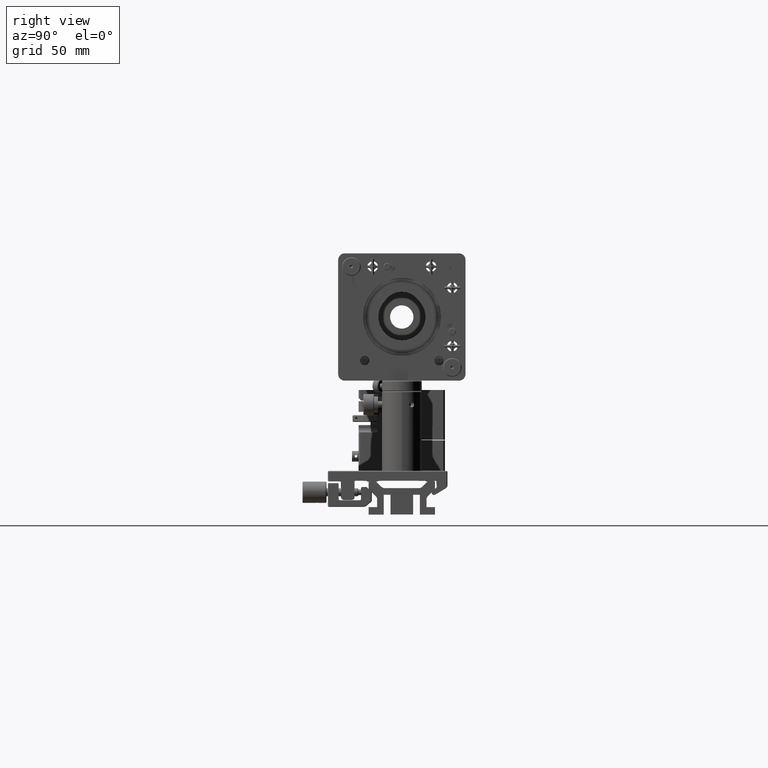
[diagram: clean part render]
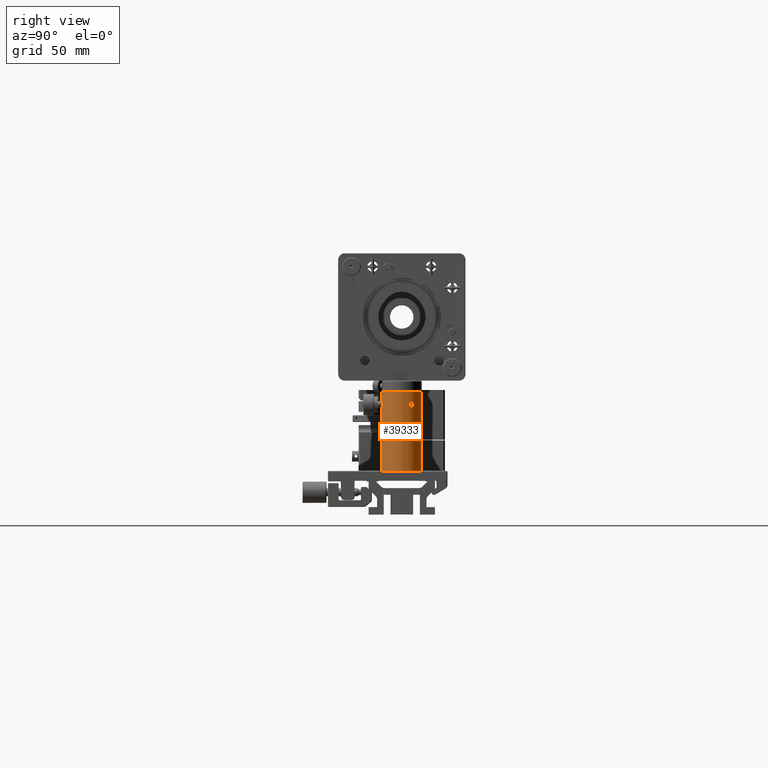
[diagram: same view with one face highlighted and labeled with its STEP entity id]
A machine part, right view. The second image highlights one B-rep face of the part: STEP entity #39333.
In plain terms, the highlighted cylindrical surface (bore or boss wall) has radius 15 mm, axis along (0, 0, 1).
Its self-contained STEP definition (entity closure, byte-faithful):
#714=B_SPLINE_CURVE_WITH_KNOTS('',3,(#88162,#88163,#88164,#88165,#88166,
#88167,#88168,#88169,#88170,#88171,#88172,#88173,#88174,#88175,#88176,#88177,
#88178,#88179,#88180,#88181,#88182,#88183,#88184,#88185,#88186,#88187,#88188,
#88189,#88190,#88191,#88192,#88193,#88194,#88195),.UNSPECIFIED.,.T.,.F.,
(4,2,2,2,2,2,2,2,2,2,2,2,2,2,2,2,4),(0.,0.0943624064863968,0.188724812972794,
0.283084699143846,0.377444585314898,0.47180447148595,0.566164357657002,
0.660526764143399,0.754889170629797,0.849251577116193,0.94361398360259,
1.03797386977364,1.13233375594469,1.22669364211575,1.3210535282868,1.4154159347732,
1.50977834125959),.UNSPECIFIED.);
#717=B_SPLINE_CURVE_WITH_KNOTS('',3,(#88280,#88281,#88282,#88283,#88284,
#88285,#88286,#88287,#88288,#88289),.UNSPECIFIED.,.F.,.F.,(4,2,2,2,4),(-0.45216790801132,
-0.414487261611798,-0.376806615212277,-0.339125943609912,-0.301445272007547),
 .UNSPECIFIED.);
#718=B_SPLINE_CURVE_WITH_KNOTS('',3,(#88290,#88291,#88292,#88293,#88294,
#88295,#88296,#88297,#88298,#88299,#88300,#88301,#88302,#88303,#88304,#88305,
#88306,#88307,#88308,#88309,#88310,#88311,#88312,#88313,#88314,#88315,#88316),
 .UNSPECIFIED.,.F.,.F.,(4,2,2,2,2,2,2,2,3,2,2,2,4),(-0.301445272007547,
-0.263764600405182,-0.226083928802817,-0.188403282403295,-0.150722636003773,
-0.113041989604252,-0.0753613432047298,-0.0376806716023649,0.,0.037680671602365,
0.07536134320473,0.113041989604252,0.150722636003774),.UNSPECIFIED.);
#719=B_SPLINE_CURVE_WITH_KNOTS('',3,(#88319,#88320,#88321,#88322,#88323,
#88324,#88325,#88326,#88327,#88328),.UNSPECIFIED.,.F.,.F.,(4,2,2,2,4),(-0.935613235848463,
-0.857645948723676,-0.77967866159889,-0.701710409415599,-0.623742157232308),
 .UNSPECIFIED.);
#720=B_SPLINE_CURVE_WITH_KNOTS('',3,(#88329,#88330,#88331,#88332,#88333,
#88334,#88335,#88336,#88337,#88338,#88339,#88340,#88341,#88342,#88343,#88344,
#88345,#88346,#88347,#88348,#88349,#88350,#88351,#88352,#88353,#88354,#88355),
 .UNSPECIFIED.,.F.,.F.,(4,2,2,2,2,2,2,2,3,2,2,2,4),(-0.623742157232308,
-0.545773905049018,-0.467805652865727,-0.389838365740941,-0.311871078616154,
-0.233903791491368,-0.155936504366581,-0.0779682521832907,0.,0.0779682521832907,
0.155936504366581,0.233903791491368,0.311871078616154),.UNSPECIFIED.);
#721=B_SPLINE_CURVE_WITH_KNOTS('',3,(#88358,#88359,#88360,#88361,#88362,
#88363,#88364,#88365,#88366,#88367),.UNSPECIFIED.,.F.,.F.,(4,2,2,2,4),(-0.935613235848461,
-0.857645948723675,-0.779678661598889,-0.701710409415598,-0.623742157232308),
 .UNSPECIFIED.);
#722=B_SPLINE_CURVE_WITH_KNOTS('',3,(#88368,#88369,#88370,#88371,#88372,
#88373,#88374,#88375,#88376,#88377,#88378,#88379,#88380,#88381,#88382,#88383,
#88384,#88385,#88386,#88387,#88388,#88389,#88390,#88391,#88392,#88393,#88394),
 .UNSPECIFIED.,.F.,.F.,(4,2,2,2,2,2,2,2,3,2,2,2,4),(-0.623742157232308,
-0.545773905049017,-0.467805652865726,-0.38983836574094,-0.311871078616154,
-0.233903791491368,-0.155936504366581,-0.0779682521832906,0.,0.0779682521832905,
0.155936504366581,0.233903791491368,0.311871078616154),.UNSPECIFIED.);
#3457=LINE('',#88276,#6767);
#6767=VECTOR('',#52413,15.);
#8325=CYLINDRICAL_SURFACE('',#43282,15.);
#8850=FACE_BOUND('',#13135,.T.);
#8851=FACE_BOUND('',#13136,.T.);
#8852=FACE_BOUND('',#13137,.T.);
#8853=FACE_BOUND('',#13138,.T.);
#10486=FACE_OUTER_BOUND('',#13134,.T.);
#13134=EDGE_LOOP('',(#32602,#32603,#32604,#32605));
#13135=EDGE_LOOP('',(#32606));
#13136=EDGE_LOOP('',(#32607,#32608));
#13137=EDGE_LOOP('',(#32609,#32610));
#13138=EDGE_LOOP('',(#32611,#32612));
#15282=CIRCLE('',#43281,15.);
#15283=CIRCLE('',#43283,15.);
#18412=VERTEX_POINT('',#88161);
#18424=VERTEX_POINT('',#88271);
#18425=VERTEX_POINT('',#88275);
#18426=VERTEX_POINT('',#88278);
#18427=VERTEX_POINT('',#88279);
#18428=VERTEX_POINT('',#88317);
#18429=VERTEX_POINT('',#88318);
#18430=VERTEX_POINT('',#88356);
#18431=VERTEX_POINT('',#88357);
#23305=EDGE_CURVE('',#18412,#18412,#714,.T.);
#23324=EDGE_CURVE('',#18424,#18424,#15282,.T.);
#23326=EDGE_CURVE('',#18424,#18425,#3457,.T.);
#23327=EDGE_CURVE('',#18425,#18425,#15283,.T.);
#23328=EDGE_CURVE('',#18426,#18427,#717,.T.);
#23329=EDGE_CURVE('',#18427,#18426,#718,.T.);
#23330=EDGE_CURVE('',#18428,#18429,#719,.T.);
#23331=EDGE_CURVE('',#18429,#18428,#720,.T.);
#23332=EDGE_CURVE('',#18430,#18431,#721,.T.);
#23333=EDGE_CURVE('',#18431,#18430,#722,.T.);
#32602=ORIENTED_EDGE('',*,*,#23324,.F.);
#32603=ORIENTED_EDGE('',*,*,#23326,.T.);
#32604=ORIENTED_EDGE('',*,*,#23327,.T.);
#32605=ORIENTED_EDGE('',*,*,#23326,.F.);
#32606=ORIENTED_EDGE('',*,*,#23305,.T.);
#32607=ORIENTED_EDGE('',*,*,#23328,.T.);
#32608=ORIENTED_EDGE('',*,*,#23329,.T.);
#32609=ORIENTED_EDGE('',*,*,#23330,.T.);
#32610=ORIENTED_EDGE('',*,*,#23331,.T.);
#32611=ORIENTED_EDGE('',*,*,#23332,.T.);
#32612=ORIENTED_EDGE('',*,*,#23333,.T.);
#39333=ADVANCED_FACE('',(#10486,#8850,#8851,#8852,#8853),#8325,.T.);
#43281=AXIS2_PLACEMENT_3D('',#88272,#52408,#52409);
#43282=AXIS2_PLACEMENT_3D('',#88274,#52411,#52412);
#43283=AXIS2_PLACEMENT_3D('',#88277,#52414,#52415);
#52408=DIRECTION('center_axis',(0.,0.,1.));
#52409=DIRECTION('ref_axis',(-1.,0.,0.));
#52411=DIRECTION('center_axis',(0.,0.,1.));
#52412=DIRECTION('ref_axis',(-1.,0.,0.));
#52413=DIRECTION('',(0.,0.,-1.));
#52414=DIRECTION('center_axis',(0.,0.,1.));
#52415=DIRECTION('ref_axis',(-1.,0.,0.));
#88161=CARTESIAN_POINT('',(-2.50000000000002,-14.790199457749,55.));
#88162=CARTESIAN_POINT('Ctrl Pts',(-2.50000000000002,-14.790199457749,55.));
#88163=CARTESIAN_POINT('Ctrl Pts',(-2.50000000000002,-14.790199457749,55.3145413549546));
#88164=CARTESIAN_POINT('Ctrl Pts',(-2.43701842756379,-14.8012713411816,
55.6496387024223));
#88165=CARTESIAN_POINT('Ctrl Pts',(-2.18170386550862,-14.8410532029474,
56.2654081323774));
#88166=CARTESIAN_POINT('Ctrl Pts',(-1.98940224121135,-14.8691658402765,
56.5461316647214));
#88167=CARTESIAN_POINT('Ctrl Pts',(-1.54613758435444,-14.9217716767248,
56.9893963215783));
#88168=CARTESIAN_POINT('Ctrl Pts',(-1.26541151060518,-14.9497129490432,
57.1817025890591));
#88169=CARTESIAN_POINT('Ctrl Pts',(-0.649633350162414,-14.9891013758636,
57.4370205224998));
#88170=CARTESIAN_POINT('Ctrl Pts',(-0.314532953903523,-15.,57.5));
#88171=CARTESIAN_POINT('Ctrl Pts',(0.314532953903491,-15.,57.5));
#88172=CARTESIAN_POINT('Ctrl Pts',(0.649633350162379,-14.9891013758636,
57.4370205224998));
#88173=CARTESIAN_POINT('Ctrl Pts',(1.26541151060515,-14.9497129490432,57.1817025890591));
#88174=CARTESIAN_POINT('Ctrl Pts',(1.54613758435441,-14.9217716767248,56.9893963215783));
#88175=CARTESIAN_POINT('Ctrl Pts',(1.98940224121132,-14.8691658402765,56.5461316647214));
#88176=CARTESIAN_POINT('Ctrl Pts',(2.18170386550858,-14.8410532029474,56.2654081323774));
#88177=CARTESIAN_POINT('Ctrl Pts',(2.43701842756376,-14.8012713411816,55.6496387024223));
#88178=CARTESIAN_POINT('Ctrl Pts',(2.49999999999999,-14.790199457749,55.3145413549547));
#88179=CARTESIAN_POINT('Ctrl Pts',(2.49999999999999,-14.790199457749,54.6854586450453));
#88180=CARTESIAN_POINT('Ctrl Pts',(2.43701842756376,-14.8012713411816,54.3503612975777));
#88181=CARTESIAN_POINT('Ctrl Pts',(2.18170386550859,-14.8410532029474,53.7345918676226));
#88182=CARTESIAN_POINT('Ctrl Pts',(1.98940224121132,-14.8691658402765,53.4538683352786));
#88183=CARTESIAN_POINT('Ctrl Pts',(1.54613758435441,-14.9217716767248,53.0106036784217));
#88184=CARTESIAN_POINT('Ctrl Pts',(1.26541151060516,-14.9497129490432,52.8182974109409));
#88185=CARTESIAN_POINT('Ctrl Pts',(0.64963335016239,-14.9891013758636,52.5629794775002));
#88186=CARTESIAN_POINT('Ctrl Pts',(0.314532953903493,-15.,52.5));
#88187=CARTESIAN_POINT('Ctrl Pts',(-0.314532953903521,-15.,52.5));
#88188=CARTESIAN_POINT('Ctrl Pts',(-0.649633350162417,-14.9891013758636,
52.5629794775002));
#88189=CARTESIAN_POINT('Ctrl Pts',(-1.26541151060518,-14.9497129490432,
52.8182974109409));
#88190=CARTESIAN_POINT('Ctrl Pts',(-1.54613758435444,-14.9217716767248,
53.0106036784217));
#88191=CARTESIAN_POINT('Ctrl Pts',(-1.98940224121135,-14.8691658402765,
53.4538683352786));
#88192=CARTESIAN_POINT('Ctrl Pts',(-2.18170386550862,-14.8410532029474,
53.7345918676226));
#88193=CARTESIAN_POINT('Ctrl Pts',(-2.43701842756379,-14.8012713411816,
54.3503612975777));
#88194=CARTESIAN_POINT('Ctrl Pts',(-2.50000000000002,-14.790199457749,54.6854586450453));
#88195=CARTESIAN_POINT('Ctrl Pts',(-2.50000000000002,-14.790199457749,55.));
#88271=CARTESIAN_POINT('',(15.,1.83691E-15,64.5));
#88272=CARTESIAN_POINT('Origin',(0.,0.,64.5));
#88274=CARTESIAN_POINT('Origin',(0.,0.,0.));
#88275=CARTESIAN_POINT('',(15.,1.83697019872103E-15,5.));
#88276=CARTESIAN_POINT('',(15.,1.83697019872103E-15,0.));
#88277=CARTESIAN_POINT('Origin',(0.,0.,5.));
#88278=CARTESIAN_POINT('',(0.,-15.,11.));
#88279=CARTESIAN_POINT('',(1.,-14.9666295470958,10.));
#88280=CARTESIAN_POINT('Ctrl Pts',(3.46944695195361E-16,-15.,11.));
#88281=CARTESIAN_POINT('Ctrl Pts',(0.125602154665073,-15.,11.));
#88282=CARTESIAN_POINT('Ctrl Pts',(0.259550934671924,-14.9982604839003,
10.974890756949));
#88283=CARTESIAN_POINT('Ctrl Pts',(0.505919317359075,-14.9919721809734,
10.8728254802627));
#88284=CARTESIAN_POINT('Ctrl Pts',(0.61834205570607,-14.9875131301665,10.795871506667));
#88285=CARTESIAN_POINT('Ctrl Pts',(0.795871566037648,-14.9791349945751,
10.6183419963354));
#88286=CARTESIAN_POINT('Ctrl Pts',(0.872825494112772,-14.9746716124095,
10.5059192845141));
#88287=CARTESIAN_POINT('Ctrl Pts',(0.974890734496756,-14.9683734020598,
10.259550988281));
#88288=CARTESIAN_POINT('Ctrl Pts',(1.,-14.9666295470958,10.1256022386745));
#88289=CARTESIAN_POINT('Ctrl Pts',(1.,-14.9666295470958,10.));
#88290=CARTESIAN_POINT('Ctrl Pts',(1.,-14.9666295470958,10.));
#88291=CARTESIAN_POINT('Ctrl Pts',(1.,-14.9666295470958,9.87439776132545));
#88292=CARTESIAN_POINT('Ctrl Pts',(0.974890734496756,-14.9683734020598,
9.74044901171903));
#88293=CARTESIAN_POINT('Ctrl Pts',(0.872825494112771,-14.9746716124095,
9.49408071548588));
#88294=CARTESIAN_POINT('Ctrl Pts',(0.795871566037648,-14.9791349945751,
9.38165800366455));
#88295=CARTESIAN_POINT('Ctrl Pts',(0.61834205570607,-14.9875131301665,9.20412849333298));
#88296=CARTESIAN_POINT('Ctrl Pts',(0.505919317359075,-14.9919721809734,
9.12717451973731));
#88297=CARTESIAN_POINT('Ctrl Pts',(0.259550934671924,-14.9982604839003,
9.02510924305103));
#88298=CARTESIAN_POINT('Ctrl Pts',(0.125602154665073,-15.,9.));
#88299=CARTESIAN_POINT('Ctrl Pts',(-0.125602154665073,-15.,9.));
#88300=CARTESIAN_POINT('Ctrl Pts',(-0.259550934671924,-14.9982604839003,
9.02510924305103));
#88301=CARTESIAN_POINT('Ctrl Pts',(-0.505919317359075,-14.9919721809734,
9.12717451973731));
#88302=CARTESIAN_POINT('Ctrl Pts',(-0.61834205570607,-14.9875131301665,
9.20412849333298));
#88303=CARTESIAN_POINT('Ctrl Pts',(-0.795871566037648,-14.9791349945751,
9.38165800366455));
#88304=CARTESIAN_POINT('Ctrl Pts',(-0.872825494112771,-14.9746716124095,
9.49408071548588));
#88305=CARTESIAN_POINT('Ctrl Pts',(-0.974890734496756,-14.9683734020598,
9.74044901171903));
#88306=CARTESIAN_POINT('Ctrl Pts',(-1.,-14.9666295470958,9.87439776132545));
#88307=CARTESIAN_POINT('Ctrl Pts',(-1.,-14.9666295470958,10.));
#88308=CARTESIAN_POINT('Ctrl Pts',(-1.,-14.9666295470958,10.1256022386745));
#88309=CARTESIAN_POINT('Ctrl Pts',(-0.974890734496756,-14.9683734020598,
10.259550988281));
#88310=CARTESIAN_POINT('Ctrl Pts',(-0.872825494112772,-14.9746716124095,
10.5059192845141));
#88311=CARTESIAN_POINT('Ctrl Pts',(-0.795871566037648,-14.9791349945751,
10.6183419963354));
#88312=CARTESIAN_POINT('Ctrl Pts',(-0.618342055706069,-14.9875131301665,
10.795871506667));
#88313=CARTESIAN_POINT('Ctrl Pts',(-0.505919317359074,-14.9919721809734,
10.8728254802627));
#88314=CARTESIAN_POINT('Ctrl Pts',(-0.259550934671924,-14.9982604839003,
10.974890756949));
#88315=CARTESIAN_POINT('Ctrl Pts',(-0.125602154665072,-15.,11.));
#88316=CARTESIAN_POINT('Ctrl Pts',(2.42861286636753E-16,-15.,11.));
#88317=CARTESIAN_POINT('',(-12.9903810567666,7.50000000000001,57.067));
#88318=CARTESIAN_POINT('',(-13.8999537946553,5.63837605223774,55.));
#88319=CARTESIAN_POINT('Ctrl Pts',(-12.9903810567665,7.50000000000005,57.067));
#88320=CARTESIAN_POINT('Ctrl Pts',(-13.1203265353079,7.27492782895265,57.067));
#88321=CARTESIAN_POINT('Ctrl Pts',(-13.2523751263621,7.03132618438759,57.0149930955907));
#88322=CARTESIAN_POINT('Ctrl Pts',(-13.4836608849531,6.5769205212558,56.8039447846602));
#88323=CARTESIAN_POINT('Ctrl Pts',(-13.5832392590408,6.36628180119967,56.6449215713942));
#88324=CARTESIAN_POINT('Ctrl Pts',(-13.7354832303866,6.03079049614787,56.2782555927977));
#88325=CARTESIAN_POINT('Ctrl Pts',(-13.7983994687281,5.88349306794876,56.0460489058792));
#88326=CARTESIAN_POINT('Ctrl Pts',(-13.8804656363133,5.68717789344861,55.5368825216529));
#88327=CARTESIAN_POINT('Ctrl Pts',(-13.8999537946553,5.63837605223774,55.2598941739443));
#88328=CARTESIAN_POINT('Ctrl Pts',(-13.8999537946553,5.63837605223774,55.));
#88329=CARTESIAN_POINT('Ctrl Pts',(-13.8999537946553,5.63837605223774,55.));
#88330=CARTESIAN_POINT('Ctrl Pts',(-13.8999537946553,5.63837605223774,54.7401058260557));
#88331=CARTESIAN_POINT('Ctrl Pts',(-13.8804656363133,5.68717789344861,54.4631174783472));
#88332=CARTESIAN_POINT('Ctrl Pts',(-13.7983994687281,5.88349306794875,53.9539510941208));
#88333=CARTESIAN_POINT('Ctrl Pts',(-13.7354832303866,6.03079049614787,53.7217444072024));
#88334=CARTESIAN_POINT('Ctrl Pts',(-13.5832392590408,6.36628180119966,53.3550784286058));
#88335=CARTESIAN_POINT('Ctrl Pts',(-13.4836608849531,6.5769205212558,53.1960552153398));
#88336=CARTESIAN_POINT('Ctrl Pts',(-13.2523751263621,7.03132618438759,52.9850069044093));
#88337=CARTESIAN_POINT('Ctrl Pts',(-13.1203265353079,7.27492782895265,52.933));
#88338=CARTESIAN_POINT('Ctrl Pts',(-12.8604355782252,7.72507217104745,52.933));
#88339=CARTESIAN_POINT('Ctrl Pts',(-12.7154946611553,7.96123042771691,52.9850069044093));
#88340=CARTESIAN_POINT('Ctrl Pts',(-12.4376106925552,8.38873260175618,53.1960552153398));
#88341=CARTESIAN_POINT('Ctrl Pts',(-12.3049813970098,8.58028936341168,53.3550784286058));
#88342=CARTESIAN_POINT('Ctrl Pts',(-12.090559389759,8.87988216269608,53.7217444072023));
#88343=CARTESIAN_POINT('Ctrl Pts',(-11.9944541941972,9.00801793750993,53.9539510941208));
#88344=CARTESIAN_POINT('Ctrl Pts',(-11.8654733497243,9.17724691068002,54.4631174783471));
#88345=CARTESIAN_POINT('Ctrl Pts',(-11.8329537946553,9.21852507148261,54.7401058260557));
#88346=CARTESIAN_POINT('Ctrl Pts',(-11.8329537946553,9.21852507148261,55.));
#88347=CARTESIAN_POINT('Ctrl Pts',(-11.8329537946553,9.21852507148261,55.2598941739443));
#88348=CARTESIAN_POINT('Ctrl Pts',(-11.8654733497243,9.17724691068002,55.5368825216529));
#88349=CARTESIAN_POINT('Ctrl Pts',(-11.9944541941972,9.00801793750993,56.0460489058792));
#88350=CARTESIAN_POINT('Ctrl Pts',(-12.090559389759,8.87988216269608,56.2782555927977));
#88351=CARTESIAN_POINT('Ctrl Pts',(-12.3049813970098,8.58028936341167,56.6449215713942));
#88352=CARTESIAN_POINT('Ctrl Pts',(-12.4376106925552,8.38873260175618,56.8039447846602));
#88353=CARTESIAN_POINT('Ctrl Pts',(-12.7154946611554,7.96123042771691,57.0149930955907));
#88354=CARTESIAN_POINT('Ctrl Pts',(-12.8604355782252,7.72507217104745,57.067));
#88355=CARTESIAN_POINT('Ctrl Pts',(-12.9903810567665,7.50000000000005,57.067));
#88356=CARTESIAN_POINT('',(12.9903810567666,7.5,57.067));
#88357=CARTESIAN_POINT('',(11.8329537946553,9.21852507148256,55.));
#88358=CARTESIAN_POINT('Ctrl Pts',(12.9903810567666,7.5,57.067));
#88359=CARTESIAN_POINT('Ctrl Pts',(12.8604355782253,7.7250721710474,57.067));
#88360=CARTESIAN_POINT('Ctrl Pts',(12.7154946611554,7.96123042771685,57.0149930955907));
#88361=CARTESIAN_POINT('Ctrl Pts',(12.4376106925553,8.38873260175612,56.8039447846602));
#88362=CARTESIAN_POINT('Ctrl Pts',(12.3049813970098,8.58028936341163,56.6449215713942));
#88363=CARTESIAN_POINT('Ctrl Pts',(12.0905593897591,8.87988216269603,56.2782555927977));
#88364=CARTESIAN_POINT('Ctrl Pts',(11.9944541941973,9.00801793750988,56.0460489058792));
#88365=CARTESIAN_POINT('Ctrl Pts',(11.8654733497244,9.17724691067997,55.5368825216529));
#88366=CARTESIAN_POINT('Ctrl Pts',(11.8329537946553,9.21852507148256,55.2598941739443));
#88367=CARTESIAN_POINT('Ctrl Pts',(11.8329537946553,9.21852507148256,55.));
#88368=CARTESIAN_POINT('Ctrl Pts',(11.8329537946553,9.21852507148256,55.));
#88369=CARTESIAN_POINT('Ctrl Pts',(11.8329537946553,9.21852507148256,54.7401058260557));
#88370=CARTESIAN_POINT('Ctrl Pts',(11.8654733497244,9.17724691067997,54.4631174783471));
#88371=CARTESIAN_POINT('Ctrl Pts',(11.9944541941973,9.00801793750988,53.9539510941208));
#88372=CARTESIAN_POINT('Ctrl Pts',(12.0905593897591,8.87988216269603,53.7217444072023));
#88373=CARTESIAN_POINT('Ctrl Pts',(12.3049813970098,8.58028936341163,53.3550784286058));
#88374=CARTESIAN_POINT('Ctrl Pts',(12.4376106925553,8.38873260175612,53.1960552153398));
#88375=CARTESIAN_POINT('Ctrl Pts',(12.7154946611554,7.96123042771685,52.9850069044093));
#88376=CARTESIAN_POINT('Ctrl Pts',(12.8604355782253,7.7250721710474,52.933));
#88377=CARTESIAN_POINT('Ctrl Pts',(13.1203265353079,7.2749278289526,52.933));
#88378=CARTESIAN_POINT('Ctrl Pts',(13.2523751263621,7.03132618438753,52.9850069044093));
#88379=CARTESIAN_POINT('Ctrl Pts',(13.4836608849532,6.57692052125575,53.1960552153398));
#88380=CARTESIAN_POINT('Ctrl Pts',(13.5832392590408,6.36628180119962,53.3550784286058));
#88381=CARTESIAN_POINT('Ctrl Pts',(13.7354832303866,6.03079049614782,53.7217444072023));
#88382=CARTESIAN_POINT('Ctrl Pts',(13.7983994687281,5.8834930679487,53.9539510941208));
#88383=CARTESIAN_POINT('Ctrl Pts',(13.8804656363133,5.68717789344855,54.4631174783471));
#88384=CARTESIAN_POINT('Ctrl Pts',(13.8999537946553,5.63837605223769,54.7401058260557));
#88385=CARTESIAN_POINT('Ctrl Pts',(13.8999537946553,5.63837605223769,55.));
#88386=CARTESIAN_POINT('Ctrl Pts',(13.8999537946553,5.63837605223769,55.2598941739443));
#88387=CARTESIAN_POINT('Ctrl Pts',(13.8804656363133,5.68717789344855,55.5368825216528));
#88388=CARTESIAN_POINT('Ctrl Pts',(13.7983994687281,5.8834930679487,56.0460489058792));
#88389=CARTESIAN_POINT('Ctrl Pts',(13.7354832303866,6.03079049614782,56.2782555927977));
#88390=CARTESIAN_POINT('Ctrl Pts',(13.5832392590408,6.36628180119962,56.6449215713942));
#88391=CARTESIAN_POINT('Ctrl Pts',(13.4836608849532,6.57692052125575,56.8039447846602));
#88392=CARTESIAN_POINT('Ctrl Pts',(13.2523751263621,7.03132618438754,57.0149930955907));
#88393=CARTESIAN_POINT('Ctrl Pts',(13.1203265353079,7.2749278289526,57.067));
#88394=CARTESIAN_POINT('Ctrl Pts',(12.9903810567666,7.5,57.067));